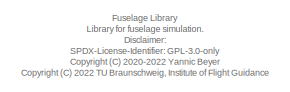
[diagram: root canvas - part 1/4, top left region]
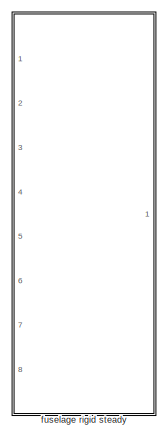
[diagram: root canvas - part 2/4, top left region]
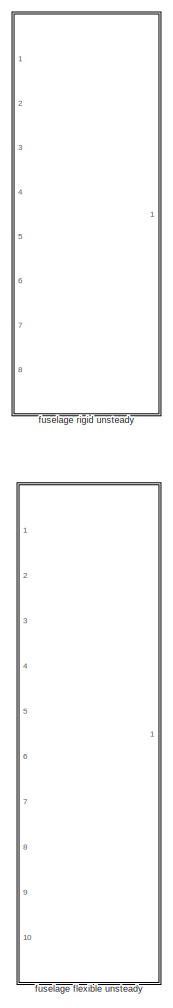
[diagram: root canvas - part 3/4, middle right region]
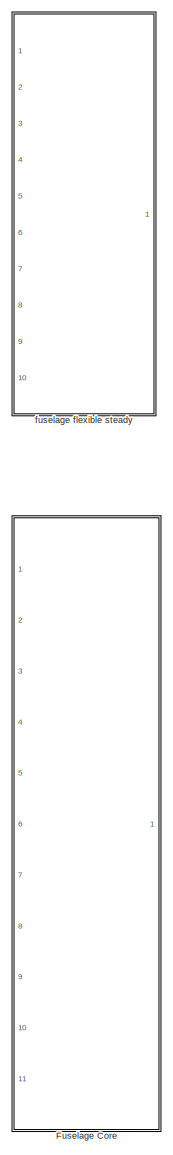
[diagram: root canvas - part 4/4, bottom left region]
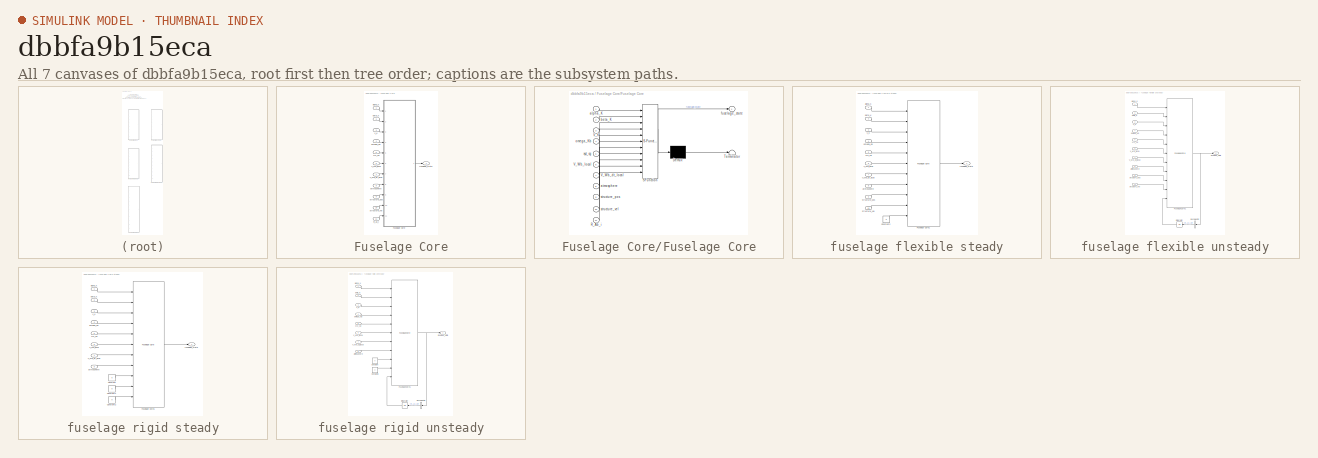
[diagram: thumbnail index - all 7 canvases of the model, root first then tree order]
MODEL slx_dbbfa9b15eca
KIND library
CONFIG AbsTol = auto
CONFIG EnableMultiTasking = off
CONFIG FixedStep = auto
CONFIG MaxStep = auto
CONFIG MinStep = auto
CONFIG RelTol = 1e-3
CONFIG SampleTimeConstraint = Unconstrained
CONFIG Solver = VariableStepAuto
CONFIG SolverName = VariableStepAuto
CONFIG StartTime = 0.0
CONFIG StopTime = 10.0
BLOCK [SubSystem] Fuselage Core
  Ports = [11, 1]
  RequestExecContextInheritance = off
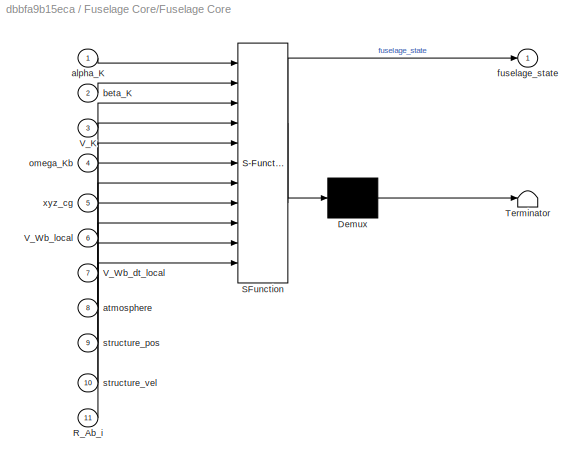
BLOCK [SubSystem] Fuselage Core/Fuselage Core
  ErrorFcn = Stateflow.Translate.translate
  PermitHierarchicalResolution = ExplicitOnly
  Ports = [11, 1]
  RequestExecContextInheritance = off
  SFBlockType = MATLAB Function
  TreatAsAtomicUnit = on
BLOCK [Demux] Fuselage Core/Fuselage Core/ Demux 
  Outputs = 1
  Ports = [1, 1]
BLOCK [S-Function] Fuselage Core/Fuselage Core/ SFunction 
  EnableBusSupport = off
  FunctionName = sf_sfun
  Parameters = fuselage_struct
  PortCounts = [11 2]
  Ports = [11, 2]
  SFcnIsStateOwnerBlock = off
  SFunctionDeploymentMode = off
  Tag = Stateflow S-Function fuselage_lib 1
BLOCK [Terminator] Fuselage Core/Fuselage Core/ Terminator 
BLOCK [Inport] Fuselage Core/Fuselage Core/R_Ab_i
  IconDisplay = Port number
  Port = 11
BLOCK [Inport] Fuselage Core/Fuselage Core/V_K
  IconDisplay = Port number
  Port = 3
BLOCK [Inport] Fuselage Core/Fuselage Core/V_Wb_dt_local
  IconDisplay = Port number
  Port = 7
BLOCK [Inport] Fuselage Core/Fuselage Core/V_Wb_local
  IconDisplay = Port number
  Port = 6
BLOCK [Inport] Fuselage Core/Fuselage Core/alpha_K
  IconDisplay = Port number
BLOCK [Inport] Fuselage Core/Fuselage Core/atmosphere
  IconDisplay = Port number
  Port = 8
BLOCK [Inport] Fuselage Core/Fuselage Core/beta_K
  IconDisplay = Port number
  Port = 2
BLOCK [Outport] Fuselage Core/Fuselage Core/fuselage_state
  IconDisplay = Port number
BLOCK [Inport] Fuselage Core/Fuselage Core/omega_Kb
  IconDisplay = Port number
  Port = 4
BLOCK [Inport] Fuselage Core/Fuselage Core/structure_pos
  IconDisplay = Port number
  Port = 9
BLOCK [Inport] Fuselage Core/Fuselage Core/structure_vel
  IconDisplay = Port number
  Port = 10
BLOCK [Inport] Fuselage Core/Fuselage Core/xyz_cg
  IconDisplay = Port number
  Port = 5
BLOCK [Inport] Fuselage Core/R_Ab_i
  IconDisplay = Port number
  Port = 11
BLOCK [Inport] Fuselage Core/V_K
  IconDisplay = Port number
  Port = 3
BLOCK [Inport] Fuselage Core/V_Wb_dt_local
  IconDisplay = Port number
  Port = 7
BLOCK [Inport] Fuselage Core/V_Wb_local
  IconDisplay = Port number
  Port = 6
BLOCK [Inport] Fuselage Core/alpha_K
  IconDisplay = Port number
BLOCK [Inport] Fuselage Core/atmosphere
  IconDisplay = Port number
  Port = 8
BLOCK [Inport] Fuselage Core/beta_K
  IconDisplay = Port number
  Port = 2
BLOCK [Outport] Fuselage Core/fuselage_state
  IconDisplay = Port number
BLOCK [Inport] Fuselage Core/omega_Kb
  IconDisplay = Port number
  Port = 4
BLOCK [Inport] Fuselage Core/structure_pos
  IconDisplay = Port number
  Port = 9
BLOCK [Inport] Fuselage Core/structure_vel
  IconDisplay = Port number
  Port = 10
BLOCK [Inport] Fuselage Core/xyz_cg
  IconDisplay = Port number
  Port = 5
BLOCK [SubSystem] fuselage flexible steady
  Ports = [10, 1]
  RequestExecContextInheritance = off
BLOCK [Constant] fuselage flexible steady/Constant2
  Value = 0
BLOCK [Reference] fuselage flexible steady/Fuselage Core1  REF=$bdroot/Fuselage Core
  Ports = [11, 1]
  SourceBlock = $bdroot/Fuselage Core
BLOCK [Inport] fuselage flexible steady/V_K
  IconDisplay = Port number
  Port = 3
BLOCK [Inport] fuselage flexible steady/V_Wb_dt_local
  IconDisplay = Port number
  Port = 7
BLOCK [Inport] fuselage flexible steady/V_Wb_local
  IconDisplay = Port number
  Port = 6
BLOCK [Inport] fuselage flexible steady/alpha_K
  IconDisplay = Port number
BLOCK [Inport] fuselage flexible steady/atmosphere
  IconDisplay = Port number
  Port = 8
BLOCK [Inport] fuselage flexible steady/beta_K
  IconDisplay = Port number
  Port = 2
BLOCK [Outport] fuselage flexible steady/fuselage_state
  IconDisplay = Port number
BLOCK [Inport] fuselage flexible steady/omega_Kb
  IconDisplay = Port number
  Port = 4
BLOCK [Inport] fuselage flexible steady/structure_pos
  IconDisplay = Port number
  Port = 9
BLOCK [Inport] fuselage flexible steady/structure_vel
  IconDisplay = Port number
  Port = 10
BLOCK [Inport] fuselage flexible steady/xyz_cg
  IconDisplay = Port number
  Port = 5
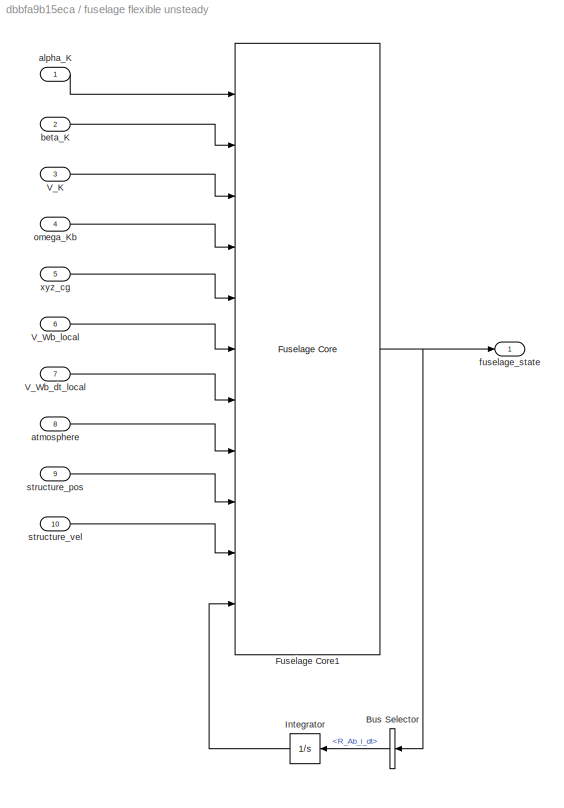
BLOCK [SubSystem] fuselage flexible unsteady
  Ports = [10, 1]
  RequestExecContextInheritance = off
BLOCK [BusSelector] fuselage flexible unsteady/Bus Selector
  OutputAsBus = off
  OutputSignals = aero.R_Ab_i_dt
  Ports = [1, 1]
BLOCK [Reference] fuselage flexible unsteady/Fuselage Core1  REF=$bdroot/Fuselage Core
  Ports = [11, 1]
  SourceBlock = $bdroot/Fuselage Core
BLOCK [Integrator] fuselage flexible unsteady/Integrator
  Ports = [1, 1]
BLOCK [Inport] fuselage flexible unsteady/V_K
  IconDisplay = Port number
  Port = 3
BLOCK [Inport] fuselage flexible unsteady/V_Wb_dt_local
  IconDisplay = Port number
  Port = 7
BLOCK [Inport] fuselage flexible unsteady/V_Wb_local
  IconDisplay = Port number
  Port = 6
BLOCK [Inport] fuselage flexible unsteady/alpha_K
  IconDisplay = Port number
BLOCK [Inport] fuselage flexible unsteady/atmosphere
  IconDisplay = Port number
  Port = 8
BLOCK [Inport] fuselage flexible unsteady/beta_K
  IconDisplay = Port number
  Port = 2
BLOCK [Outport] fuselage flexible unsteady/fuselage_state
  IconDisplay = Port number
BLOCK [Inport] fuselage flexible unsteady/omega_Kb
  IconDisplay = Port number
  Port = 4
BLOCK [Inport] fuselage flexible unsteady/structure_pos
  IconDisplay = Port number
  Port = 9
BLOCK [Inport] fuselage flexible unsteady/structure_vel
  IconDisplay = Port number
  Port = 10
BLOCK [Inport] fuselage flexible unsteady/xyz_cg
  IconDisplay = Port number
  Port = 5
BLOCK [SubSystem] fuselage rigid steady
  Ports = [8, 1]
  RequestExecContextInheritance = off
BLOCK [Constant] fuselage rigid steady/Constant
  Value = 0
BLOCK [Constant] fuselage rigid steady/Constant1
  Value = 0
BLOCK [Constant] fuselage rigid steady/Constant2
  Value = 0
BLOCK [Reference] fuselage rigid steady/Fuselage Core1  REF=$bdroot/Fuselage Core
  Ports = [11, 1]
  SourceBlock = $bdroot/Fuselage Core
BLOCK [Inport] fuselage rigid steady/V_K
  IconDisplay = Port number
  Port = 3
BLOCK [Inport] fuselage rigid steady/V_Wb_dt_local
  IconDisplay = Port number
  Port = 7
BLOCK [Inport] fuselage rigid steady/V_Wb_local
  IconDisplay = Port number
  Port = 6
BLOCK [Inport] fuselage rigid steady/alpha_K
  IconDisplay = Port number
BLOCK [Inport] fuselage rigid steady/atmosphere
  IconDisplay = Port number
  Port = 8
BLOCK [Inport] fuselage rigid steady/beta_K
  IconDisplay = Port number
  Port = 2
BLOCK [Outport] fuselage rigid steady/fuselage_state
  IconDisplay = Port number
BLOCK [Inport] fuselage rigid steady/omega_Kb
  IconDisplay = Port number
  Port = 4
BLOCK [Inport] fuselage rigid steady/xyz_cg
  IconDisplay = Port number
  Port = 5
BLOCK [SubSystem] fuselage rigid unsteady
  Ports = [8, 1]
  RequestExecContextInheritance = off
BLOCK [BusSelector] fuselage rigid unsteady/Bus Selector
  OutputAsBus = off
  OutputSignals = aero.R_Ab_i_dt
  Ports = [1, 1]
BLOCK [Constant] fuselage rigid unsteady/Constant
  Value = 0
BLOCK [Constant] fuselage rigid unsteady/Constant1
  Value = 0
BLOCK [Reference] fuselage rigid unsteady/Fuselage Core1  REF=$bdroot/Fuselage Core
  Ports = [11, 1]
  SourceBlock = $bdroot/Fuselage Core
BLOCK [Integrator] fuselage rigid unsteady/Integrator
  Ports = [1, 1]
BLOCK [Inport] fuselage rigid unsteady/V_K
  IconDisplay = Port number
  Port = 3
BLOCK [Inport] fuselage rigid unsteady/V_Wb_dt_local
  IconDisplay = Port number
  Port = 7
BLOCK [Inport] fuselage rigid unsteady/V_Wb_local
  IconDisplay = Port number
  Port = 6
BLOCK [Inport] fuselage rigid unsteady/alpha_K
  IconDisplay = Port number
BLOCK [Inport] fuselage rigid unsteady/atmosphere
  IconDisplay = Port number
  Port = 8
BLOCK [Inport] fuselage rigid unsteady/beta_K
  IconDisplay = Port number
  Port = 2
BLOCK [Outport] fuselage rigid unsteady/fuselage_state
  IconDisplay = Port number
BLOCK [Inport] fuselage rigid unsteady/omega_Kb
  IconDisplay = Port number
  Port = 4
BLOCK [Inport] fuselage rigid unsteady/xyz_cg
  IconDisplay = Port number
  Port = 5
ANNOTATION (root): Fuselage Library Library for fuselage simulation. Disclaimer: SPDX-License-Identifier: GPL-3.0-only <copyright redacted>
LINE Fuselage Core/Fuselage Core:1 -> Fuselage Core/fuselage_state:1
LINE Fuselage Core/R_Ab_i:1 -> Fuselage Core/Fuselage Core:11
LINE Fuselage Core/V_K:1 -> Fuselage Core/Fuselage Core:3
LINE Fuselage Core/V_Wb_dt_local:1 -> Fuselage Core/Fuselage Core:7
LINE Fuselage Core/V_Wb_local:1 -> Fuselage Core/Fuselage Core:6
LINE Fuselage Core/alpha_K:1 -> Fuselage Core/Fuselage Core:1
LINE Fuselage Core/atmosphere:1 -> Fuselage Core/Fuselage Core:8
LINE Fuselage Core/beta_K:1 -> Fuselage Core/Fuselage Core:2
LINE Fuselage Core/omega_Kb:1 -> Fuselage Core/Fuselage Core:4
LINE Fuselage Core/structure_pos:1 -> Fuselage Core/Fuselage Core:9
LINE Fuselage Core/structure_vel:1 -> Fuselage Core/Fuselage Core:10
LINE Fuselage Core/xyz_cg:1 -> Fuselage Core/Fuselage Core:5
LINE fuselage flexible steady/Constant2:1 -> fuselage flexible steady/Fuselage Core1:11
LINE fuselage flexible steady/Fuselage Core1:1 -> fuselage flexible steady/fuselage_state:1
LINE fuselage flexible steady/V_K:1 -> fuselage flexible steady/Fuselage Core1:3
LINE fuselage flexible steady/V_Wb_dt_local:1 -> fuselage flexible steady/Fuselage Core1:7
LINE fuselage flexible steady/V_Wb_local:1 -> fuselage flexible steady/Fuselage Core1:6
LINE fuselage flexible steady/alpha_K:1 -> fuselage flexible steady/Fuselage Core1:1
LINE fuselage flexible steady/atmosphere:1 -> fuselage flexible steady/Fuselage Core1:8
LINE fuselage flexible steady/beta_K:1 -> fuselage flexible steady/Fuselage Core1:2
LINE fuselage flexible steady/omega_Kb:1 -> fuselage flexible steady/Fuselage Core1:4
LINE fuselage flexible steady/structure_pos:1 -> fuselage flexible steady/Fuselage Core1:9
LINE fuselage flexible steady/structure_vel:1 -> fuselage flexible steady/Fuselage Core1:10
LINE fuselage flexible steady/xyz_cg:1 -> fuselage flexible steady/Fuselage Core1:5
LINE fuselage flexible unsteady/Bus Selector:1 -> fuselage flexible unsteady/Integrator:1
NET fuselage flexible unsteady/Fuselage Core1:1 -> fuselage flexible unsteady/Bus Selector:1, fuselage flexible unsteady/fuselage_state:1
LINE fuselage flexible unsteady/Integrator:1 -> fuselage flexible unsteady/Fuselage Core1:11
LINE fuselage flexible unsteady/V_K:1 -> fuselage flexible unsteady/Fuselage Core1:3
LINE fuselage flexible unsteady/V_Wb_dt_local:1 -> fuselage flexible unsteady/Fuselage Core1:7
LINE fuselage flexible unsteady/V_Wb_local:1 -> fuselage flexible unsteady/Fuselage Core1:6
LINE fuselage flexible unsteady/alpha_K:1 -> fuselage flexible unsteady/Fuselage Core1:1
LINE fuselage flexible unsteady/atmosphere:1 -> fuselage flexible unsteady/Fuselage Core1:8
LINE fuselage flexible unsteady/beta_K:1 -> fuselage flexible unsteady/Fuselage Core1:2
LINE fuselage flexible unsteady/omega_Kb:1 -> fuselage flexible unsteady/Fuselage Core1:4
LINE fuselage flexible unsteady/structure_pos:1 -> fuselage flexible unsteady/Fuselage Core1:9
LINE fuselage flexible unsteady/structure_vel:1 -> fuselage flexible unsteady/Fuselage Core1:10
LINE fuselage flexible unsteady/xyz_cg:1 -> fuselage flexible unsteady/Fuselage Core1:5
LINE fuselage rigid steady/Constant1:1 -> fuselage rigid steady/Fuselage Core1:10
LINE fuselage rigid steady/Constant2:1 -> fuselage rigid steady/Fuselage Core1:11
LINE fuselage rigid steady/Constant:1 -> fuselage rigid steady/Fuselage Core1:9
LINE fuselage rigid steady/Fuselage Core1:1 -> fuselage rigid steady/fuselage_state:1
LINE fuselage rigid steady/V_K:1 -> fuselage rigid steady/Fuselage Core1:3
LINE fuselage rigid steady/V_Wb_dt_local:1 -> fuselage rigid steady/Fuselage Core1:7
LINE fuselage rigid steady/V_Wb_local:1 -> fuselage rigid steady/Fuselage Core1:6
LINE fuselage rigid steady/alpha_K:1 -> fuselage rigid steady/Fuselage Core1:1
LINE fuselage rigid steady/atmosphere:1 -> fuselage rigid steady/Fuselage Core1:8
LINE fuselage rigid steady/beta_K:1 -> fuselage rigid steady/Fuselage Core1:2
LINE fuselage rigid steady/omega_Kb:1 -> fuselage rigid steady/Fuselage Core1:4
LINE fuselage rigid steady/xyz_cg:1 -> fuselage rigid steady/Fuselage Core1:5
LINE fuselage rigid unsteady/Bus Selector:1 -> fuselage rigid unsteady/Integrator:1
LINE fuselage rigid unsteady/Constant1:1 -> fuselage rigid unsteady/Fuselage Core1:10
LINE fuselage rigid unsteady/Constant:1 -> fuselage rigid unsteady/Fuselage Core1:9
NET fuselage rigid unsteady/Fuselage Core1:1 -> fuselage rigid unsteady/Bus Selector:1, fuselage rigid unsteady/fuselage_state:1
LINE fuselage rigid unsteady/Integrator:1 -> fuselage rigid unsteady/Fuselage Core1:11
LINE fuselage rigid unsteady/V_K:1 -> fuselage rigid unsteady/Fuselage Core1:3
LINE fuselage rigid unsteady/V_Wb_dt_local:1 -> fuselage rigid unsteady/Fuselage Core1:7
LINE fuselage rigid unsteady/V_Wb_local:1 -> fuselage rigid unsteady/Fuselage Core1:6
LINE fuselage rigid unsteady/alpha_K:1 -> fuselage rigid unsteady/Fuselage Core1:1
LINE fuselage rigid unsteady/atmosphere:1 -> fuselage rigid unsteady/Fuselage Core1:8
LINE fuselage rigid unsteady/beta_K:1 -> fuselage rigid unsteady/Fuselage Core1:2
LINE fuselage rigid unsteady/omega_Kb:1 -> fuselage rigid unsteady/Fuselage Core1:4
LINE fuselage rigid unsteady/xyz_cg:1 -> fuselage rigid unsteady/Fuselage Core1:5
note: NET lines group one-source signal fan-out (src -> all destinations, sorted); 1:1 wires keep LINE
CHART Fuselage Core/Fuselage Core states=1 transitions=1
  STATE_LABEL 'eML_blk_kernel()'
  STATE_LABEL "SCRIPT:\nfunction fuselage_state = fuselageCore(alpha_K,beta_K,V_K,...\n    omega_Kb,xyz_cg,V_Wb_local,V_Wb_dt_local,atmosphere,...\n    structure_pos,structure_vel,R_Ab_i, fuselage_struct)\n\n% compute and set fuselage state\nfuselage_struct = fuselageSetState( fuselage_struct, alpha_K, beta_K, V_K, omega_Kb, ...\n    xyz_cg, 'atmosphere', atmosphere, 'V_Wb', V_Wb_local, 'V_Wb_dt', V_Wb_dt_local, ...\n  ...<+232ch>"
